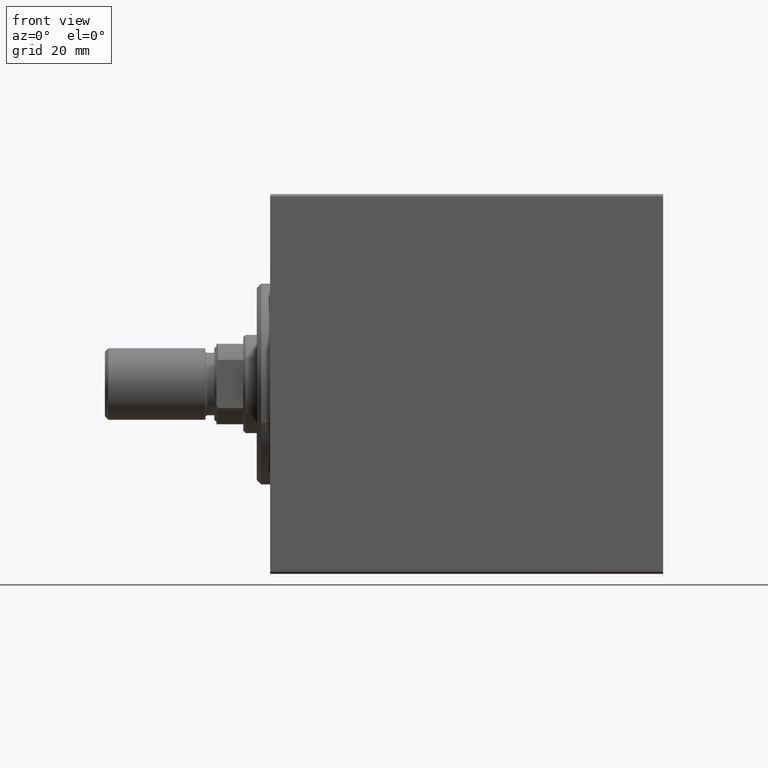
[diagram: clean part render]
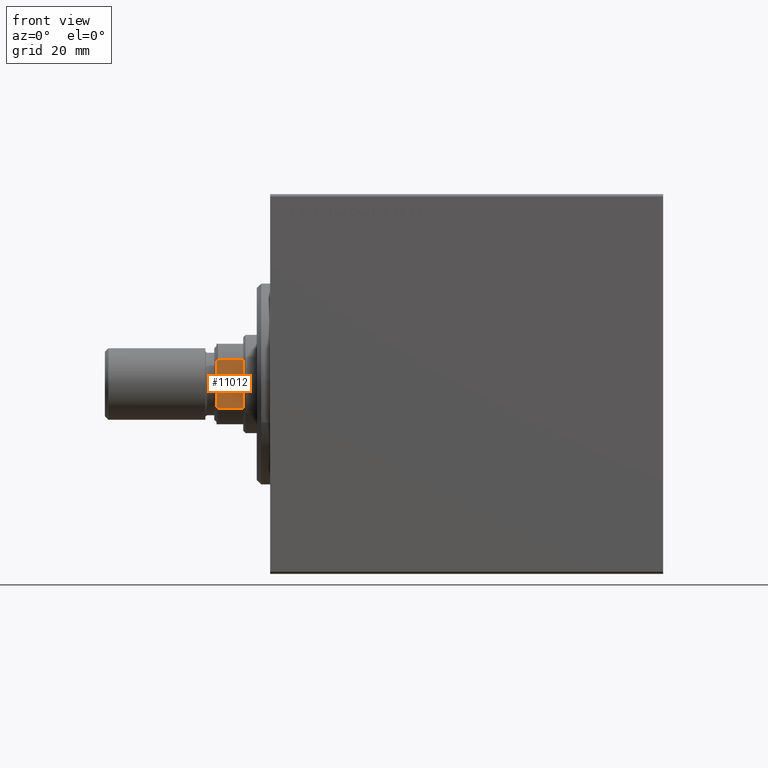
[diagram: same view with one face highlighted and labeled with its STEP entity id]
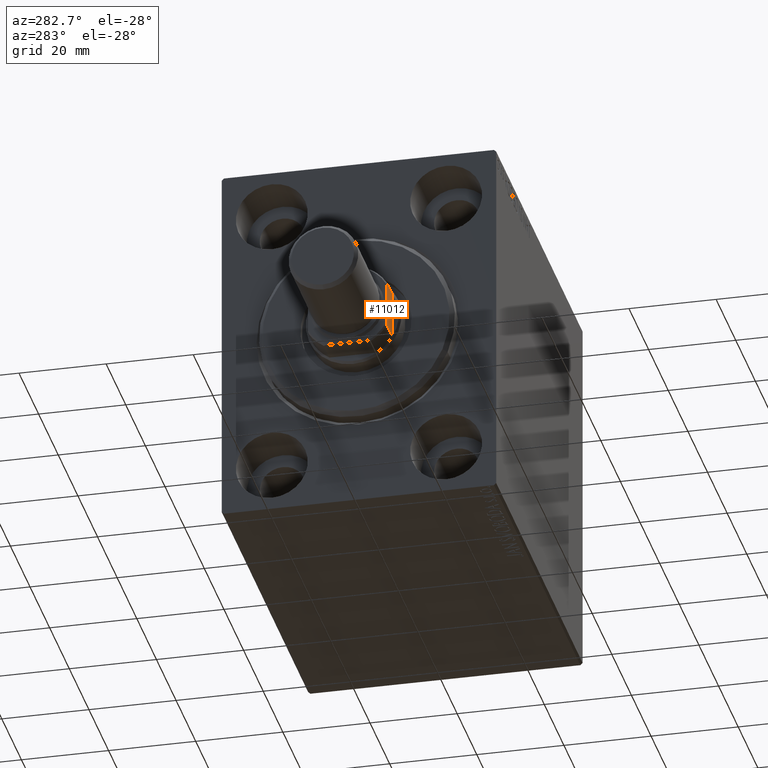
[diagram: same view with one face highlighted and labeled with its STEP entity id]
A machine part, front view. The second image highlights one B-rep face of the part: STEP entity #11012.
A second angle (auxiliary view) of the same face is appended — the face is thin or edge-on in the first view.
In plain terms, the highlighted planar face has unit normal (0, 1, 0).
Its self-contained STEP definition (entity closure, byte-faithful):
#163 = VERTEX_POINT ( 'NONE', #25649 ) ;
#180 = AXIS2_PLACEMENT_3D ( 'NONE', #13371, #37204, #6407 ) ;
#1245 = EDGE_CURVE ( 'NONE', #30556, #21269, #28436, .T. ) ;
#2932 = CARTESIAN_POINT ( 'NONE',  ( -5.004607318780272429, -9.000000000000001776, 87.90371420292690630 ) ) ;
#3146 = CARTESIAN_POINT ( 'NONE',  ( -5.207299490555458377, -9.000000000000001776, 87.80354495430066208 ) ) ;
#3257 = EDGE_CURVE ( 'NONE', #35188, #21269, #20347, .T. ) ;
#3721 = EDGE_CURVE ( 'NONE', #35188, #163, #15445, .T. ) ;
#3745 = DIRECTION ( 'NONE',  ( -0.000000000000000000, -0.000000000000000000, 1.000000000000000000 ) ) ;
#4090 = VECTOR ( 'NONE', #27387, 1000.000000000000000 ) ;
#4198 = ORIENTED_EDGE ( 'NONE', *, *, #1245, .T. ) ;
#6140 = VECTOR ( 'NONE', #16980, 1000.000000000000000 ) ;
#6407 = DIRECTION ( 'NONE',  ( 0.000000000000000000, -0.000000000000000000, 1.000000000000000000 ) ) ;
#6893 = ORIENTED_EDGE ( 'NONE', *, *, #25922, .T. ) ;
#7123 = CARTESIAN_POINT ( 'NONE',  ( 5.408326913195988794, -8.999999999999998224, -0.001000000000001000089 ) ) ;
#7405 = VECTOR ( 'NONE', #32533, 1000.000000000000000 ) ;
#8017 = ORIENTED_EDGE ( 'NONE', *, *, #28345, .T. ) ;
#9035 = VECTOR ( 'NONE', #3745, 1000.000000000000000 ) ;
#9771 = FACE_OUTER_BOUND ( 'NONE', #20380, .T. ) ;
#11012 = ADVANCED_FACE ( 'NONE', ( #9771 ), #23496, .F. ) ;
#12065 = LINE ( 'NONE', #22409, #7405 ) ;
#13371 = CARTESIAN_POINT ( 'NONE',  ( -8.999999999999998224, -9.000000000000001776, 88.00000000000000000 ) ) ;
#13871 = EDGE_CURVE ( 'NONE', #37450, #163, #12065, .T. ) ;
#15445 = B_SPLINE_CURVE_WITH_KNOTS ( 'NONE', 3,
 ( #36891, #2932, #3146, #19586 ),
 .UNSPECIFIED., .F., .F.,
 ( 4, 4 ),
 ( 0.000000000000000000, 0.0006782784334759783514 ),
 .UNSPECIFIED. ) ;
#16319 = CARTESIAN_POINT ( 'NONE',  ( -8.999999999999998224, -9.000000000000001776, 88.00000000000000000 ) ) ;
#16980 = DIRECTION ( 'NONE',  ( 1.000000000000000000, 0.000000000000000000, 0.000000000000000000 ) ) ;
#19586 = CARTESIAN_POINT ( 'NONE',  ( -5.408326913195988794, -8.999999999999998224, 87.69999999999997442 ) ) ;
#19743 = ORIENTED_EDGE ( 'NONE', *, *, #3721, .T. ) ;
#19754 = CARTESIAN_POINT ( 'NONE',  ( -4.799999999999956302, -9.000000000000001776, 88.00000000000000000 ) ) ;
#20224 = CARTESIAN_POINT ( 'NONE',  ( 5.207299490555466370, -8.999999999999998224, 87.80354495430066208 ) ) ;
#20347 = LINE ( 'NONE', #16319, #6140 ) ;
#20380 = EDGE_LOOP ( 'NONE', ( #6893, #4198, #42283, #19743, #26509, #8017 ) ) ;
#20528 = CARTESIAN_POINT ( 'NONE',  ( 4.799999999999974065, -9.000000000000001776, 88.00000000000000000 ) ) ;
#21195 = CARTESIAN_POINT ( 'NONE',  ( 5.408326913195988794, -8.999999999999998224, 87.69999999999997442 ) ) ;
#21269 = VERTEX_POINT ( 'NONE', #20528 ) ;
#22409 = CARTESIAN_POINT ( 'NONE',  ( -5.408326913195988794, -8.999999999999998224, -0.001000000000001000089 ) ) ;
#23496 = PLANE ( 'NONE',  #180 ) ;
#23798 = CARTESIAN_POINT ( 'NONE',  ( -8.999999999999998224, -9.000000000000001776, 81.99999999999998579 ) ) ;
#24218 = LINE ( 'NONE', #7123, #9035 ) ;
#25649 = CARTESIAN_POINT ( 'NONE',  ( -5.408326913195988794, -8.999999999999998224, 87.69999999999997442 ) ) ;
#25922 = EDGE_CURVE ( 'NONE', #31063, #30556, #24218, .T. ) ;
#26509 = ORIENTED_EDGE ( 'NONE', *, *, #13871, .F. ) ;
#26967 = CARTESIAN_POINT ( 'NONE',  ( 4.799999999999974065, -9.000000000000001776, 88.00000000000000000 ) ) ;
#27387 = DIRECTION ( 'NONE',  ( 1.000000000000000000, 0.000000000000000000, 0.000000000000000000 ) ) ;
#27630 = CARTESIAN_POINT ( 'NONE',  ( 5.004607318780291081, -9.000000000000001776, 87.90371420292690630 ) ) ;
#28216 = CARTESIAN_POINT ( 'NONE',  ( -5.408326913195988794, -8.999999999999998224, 81.99999999999997158 ) ) ;
#28345 = EDGE_CURVE ( 'NONE', #37450, #31063, #44479, .T. ) ;
#28436 = B_SPLINE_CURVE_WITH_KNOTS ( 'NONE', 3,
 ( #33940, #20224, #27630, #26967 ),
 .UNSPECIFIED., .F., .F.,
 ( 4, 4 ),
 ( 0.000000000000000000, 0.0006782784334759612210 ),
 .UNSPECIFIED. ) ;
#30556 = VERTEX_POINT ( 'NONE', #21195 ) ;
#31063 = VERTEX_POINT ( 'NONE', #37497 ) ;
#32533 = DIRECTION ( 'NONE',  ( -0.000000000000000000, -0.000000000000000000, 1.000000000000000000 ) ) ;
#33940 = CARTESIAN_POINT ( 'NONE',  ( 5.408326913195988794, -8.999999999999998224, 87.69999999999997442 ) ) ;
#35188 = VERTEX_POINT ( 'NONE', #19754 ) ;
#36891 = CARTESIAN_POINT ( 'NONE',  ( -4.799999999999956302, -9.000000000000001776, 88.00000000000000000 ) ) ;
#37204 = DIRECTION ( 'NONE',  ( 0.000000000000000000, 1.000000000000000000, 0.000000000000000000 ) ) ;
#37450 = VERTEX_POINT ( 'NONE', #28216 ) ;
#37497 = CARTESIAN_POINT ( 'NONE',  ( 5.408326913195988794, -8.999999999999998224, 81.99999999999997158 ) ) ;
#42283 = ORIENTED_EDGE ( 'NONE', *, *, #3257, .F. ) ;
#44479 = LINE ( 'NONE', #23798, #4090 ) ;